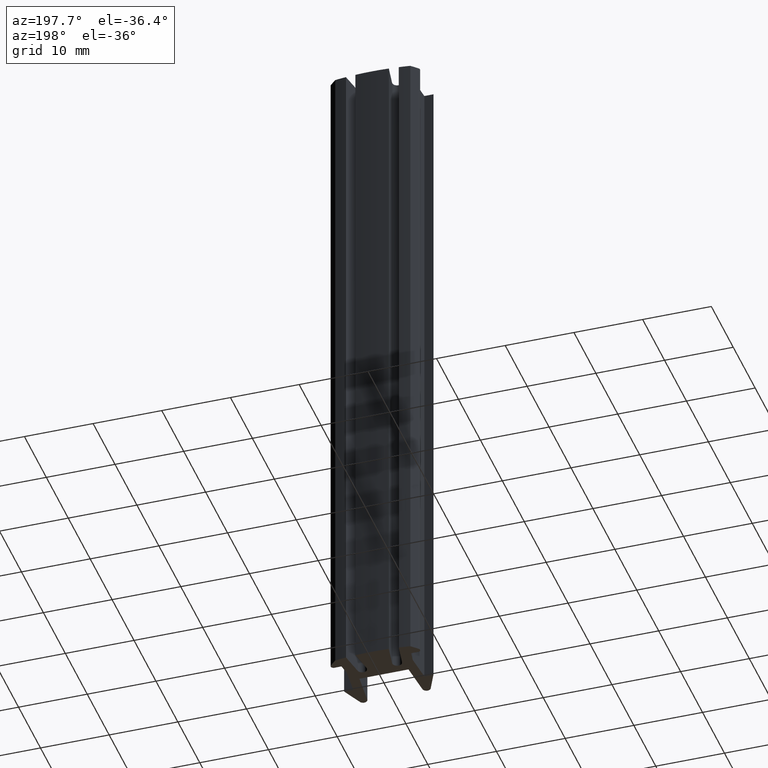
[diagram: clean part render]
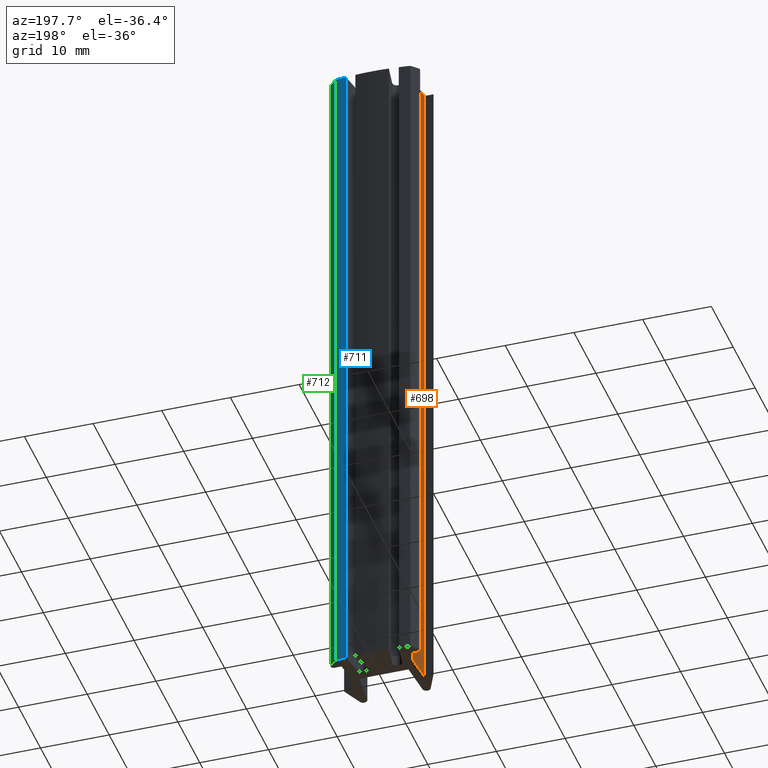
[diagram: same view with three faces highlighted in distinct colors, each labeled with its STEP entity id]
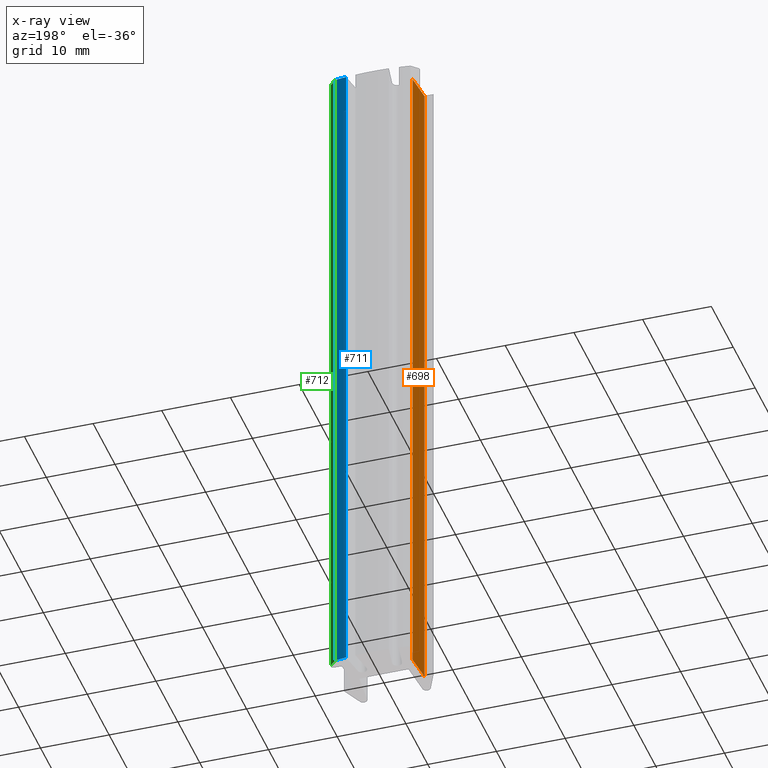
[diagram: x-ray of the same camera — body ghosted, the three highlighted faces saturated]
A machine part, auxiliary view with three faces highlighted in distinct colors.
The next image is the same camera in x-ray (body ghosted, the three faces saturated) — at least one of them is partly hidden behind the body in this view.
Their STEP definitions:

[orange] entity #698 — the highlighted planar face has unit normal (-0.9962, 0.0872, 0).
#177=FACE_OUTER_BOUND('',#207,.T.);
#207=EDGE_LOOP('',(#527,#528,#529,#530));
#247=LINE('',#1047,#313);
#248=LINE('',#1050,#314);
#249=LINE('',#1052,#315);
#250=LINE('',#1053,#316);
#313=VECTOR('',#842,10.);
#314=VECTOR('',#845,10.);
#315=VECTOR('',#846,10.);
#316=VECTOR('',#847,10.);
#375=VERTEX_POINT('',#1043);
#376=VERTEX_POINT('',#1045);
#377=VERTEX_POINT('',#1049);
#378=VERTEX_POINT('',#1051);
#437=EDGE_CURVE('',#375,#376,#247,.T.);
#438=EDGE_CURVE('',#377,#375,#248,.T.);
#439=EDGE_CURVE('',#378,#376,#249,.T.);
#440=EDGE_CURVE('',#377,#378,#250,.T.);
#527=ORIENTED_EDGE('',*,*,#438,.T.);
#528=ORIENTED_EDGE('',*,*,#437,.T.);
#529=ORIENTED_EDGE('',*,*,#439,.F.);
#530=ORIENTED_EDGE('',*,*,#440,.F.);
#676=PLANE('',#750);
#698=ADVANCED_FACE('',(#177),#676,.T.);
#750=AXIS2_PLACEMENT_3D('',#1048,#843,#844);
#842=DIRECTION('',(0.,0.,1.));
#843=DIRECTION('center_axis',(-0.996194698091746,0.0871557427476565,0.));
#844=DIRECTION('ref_axis',(-0.0871557427476565,-0.996194698091746,0.));
#845=DIRECTION('',(-0.0871557427476565,-0.996194698091746,0.));
#846=DIRECTION('',(-0.0871557427476565,-0.996194698091746,0.));
#847=DIRECTION('',(0.,0.,1.));
#1043=CARTESIAN_POINT('',(-5.17480977092723,-2.21875459062215,0.));
#1045=CARTESIAN_POINT('',(-5.17480977092723,-2.21875459062215,100.));
#1047=CARTESIAN_POINT('',(-5.17480977092723,-2.21875459062215,0.));
#1048=CARTESIAN_POINT('Origin',(-4.80951587428952,1.95657375382642,0.));
#1049=CARTESIAN_POINT('',(-4.80951587428952,1.95657375382642,0.));
#1050=CARTESIAN_POINT('',(-4.80951587428952,1.95657375382642,0.));
#1051=CARTESIAN_POINT('',(-4.80951587428952,1.95657375382642,100.));
#1052=CARTESIAN_POINT('',(-4.80951587428952,1.95657375382642,100.));
#1053=CARTESIAN_POINT('',(-4.80951587428952,1.95657375382642,0.));

[blue] entity #711 — the highlighted cylindrical surface (partial cylindrical patch) has radius 38.3963 mm, axis along (0, 0, 1).
#138=CIRCLE('',#774,38.3963333612448);
#139=CIRCLE('',#775,38.3963333612448);
#168=CYLINDRICAL_SURFACE('',#773,38.3963333612448);
#190=FACE_OUTER_BOUND('',#220,.T.);
#220=EDGE_LOOP('',(#579,#580,#581,#582));
#276=LINE('',#1125,#342);
#277=LINE('',#1131,#343);
#342=VECTOR('',#917,10.);
#343=VECTOR('',#924,10.);
#401=VERTEX_POINT('',#1121);
#402=VERTEX_POINT('',#1123);
#403=VERTEX_POINT('',#1127);
#404=VERTEX_POINT('',#1129);
#476=EDGE_CURVE('',#401,#402,#276,.T.);
#477=EDGE_CURVE('',#403,#401,#138,.T.);
#478=EDGE_CURVE('',#404,#402,#139,.T.);
#479=EDGE_CURVE('',#403,#404,#277,.T.);
#579=ORIENTED_EDGE('',*,*,#477,.T.);
#580=ORIENTED_EDGE('',*,*,#476,.T.);
#581=ORIENTED_EDGE('',*,*,#478,.F.);
#582=ORIENTED_EDGE('',*,*,#479,.F.);
#711=ADVANCED_FACE('',(#190),#168,.T.);
#773=AXIS2_PLACEMENT_3D('',#1126,#918,#919);
#774=AXIS2_PLACEMENT_3D('',#1128,#920,#921);
#775=AXIS2_PLACEMENT_3D('',#1130,#922,#923);
#917=DIRECTION('',(0.,0.,1.));
#918=DIRECTION('center_axis',(0.,0.,1.));
#919=DIRECTION('ref_axis',(0.14248675201838,0.989796709177825,0.));
#920=DIRECTION('center_axis',(0.,0.,1.));
#921=DIRECTION('ref_axis',(0.14248675201838,0.989796709177825,0.));
#922=DIRECTION('center_axis',(0.,0.,1.));
#923=DIRECTION('ref_axis',(0.14248675201838,0.989796709177825,0.));
#924=DIRECTION('',(0.,0.,1.));
#1121=CARTESIAN_POINT('',(3.83844591518035,5.28854856937413,0.));
#1123=CARTESIAN_POINT('',(3.83844591518035,5.28854856937413,100.));
#1125=CARTESIAN_POINT('',(3.83844591518035,5.28854856937413,0.));
#1126=CARTESIAN_POINT('Origin',(-1.50234785722958E-8,-32.9154400761684,
0.));
#1127=CARTESIAN_POINT('',(5.47096881503525,5.08912432928646,0.));
#1128=CARTESIAN_POINT('Origin',(-1.50234785722958E-8,-32.9154400761684,
0.));
#1129=CARTESIAN_POINT('',(5.47096881503525,5.08912432928646,100.));
#1130=CARTESIAN_POINT('Origin',(-1.50234785722958E-8,-32.9154400761684,
100.));
#1131=CARTESIAN_POINT('',(5.47096881503525,5.08912432928646,0.));

[green] entity #712 — the highlighted planar face has unit normal (0.7071, 0.7071, 0).
#191=FACE_OUTER_BOUND('',#221,.T.);
#221=EDGE_LOOP('',(#583,#584,#585,#586));
#277=LINE('',#1131,#343);
#278=LINE('',#1134,#344);
#279=LINE('',#1136,#345);
#280=LINE('',#1137,#346);
#343=VECTOR('',#924,10.);
#344=VECTOR('',#927,10.);
#345=VECTOR('',#928,10.);
#346=VECTOR('',#929,10.);
#403=VERTEX_POINT('',#1127);
#404=VERTEX_POINT('',#1129);
#405=VERTEX_POINT('',#1133);
#406=VERTEX_POINT('',#1135);
#479=EDGE_CURVE('',#403,#404,#277,.T.);
#480=EDGE_CURVE('',#405,#403,#278,.T.);
#481=EDGE_CURVE('',#406,#404,#279,.T.);
#482=EDGE_CURVE('',#405,#406,#280,.T.);
#583=ORIENTED_EDGE('',*,*,#480,.T.);
#584=ORIENTED_EDGE('',*,*,#479,.T.);
#585=ORIENTED_EDGE('',*,*,#481,.F.);
#586=ORIENTED_EDGE('',*,*,#482,.F.);
#684=PLANE('',#776);
#712=ADVANCED_FACE('',(#191),#684,.T.);
#776=AXIS2_PLACEMENT_3D('',#1132,#925,#926);
#924=DIRECTION('',(0.,0.,1.));
#925=DIRECTION('center_axis',(0.707106769536687,0.707106792836408,0.));
#926=DIRECTION('ref_axis',(-0.707106792836408,0.707106769536687,0.));
#927=DIRECTION('',(-0.707106792836408,0.707106769536687,0.));
#928=DIRECTION('',(-0.707106792836408,0.707106769536687,0.));
#929=DIRECTION('',(0.,0.,1.));
#1127=CARTESIAN_POINT('',(5.47096881503525,5.08912432928646,0.));
#1129=CARTESIAN_POINT('',(5.47096881503525,5.08912432928646,100.));
#1131=CARTESIAN_POINT('',(5.47096881503525,5.08912432928646,0.));
#1132=CARTESIAN_POINT('Origin',(6.38284270496288,4.17725046940578,0.));
#1133=CARTESIAN_POINT('',(6.38284270496288,4.17725046940578,0.));
#1134=CARTESIAN_POINT('',(6.38284270496288,4.17725046940578,0.));
#1135=CARTESIAN_POINT('',(6.38284270496288,4.17725046940578,100.));
#1136=CARTESIAN_POINT('',(6.38284270496288,4.17725046940578,100.));
#1137=CARTESIAN_POINT('',(6.38284270496288,4.17725046940578,0.));